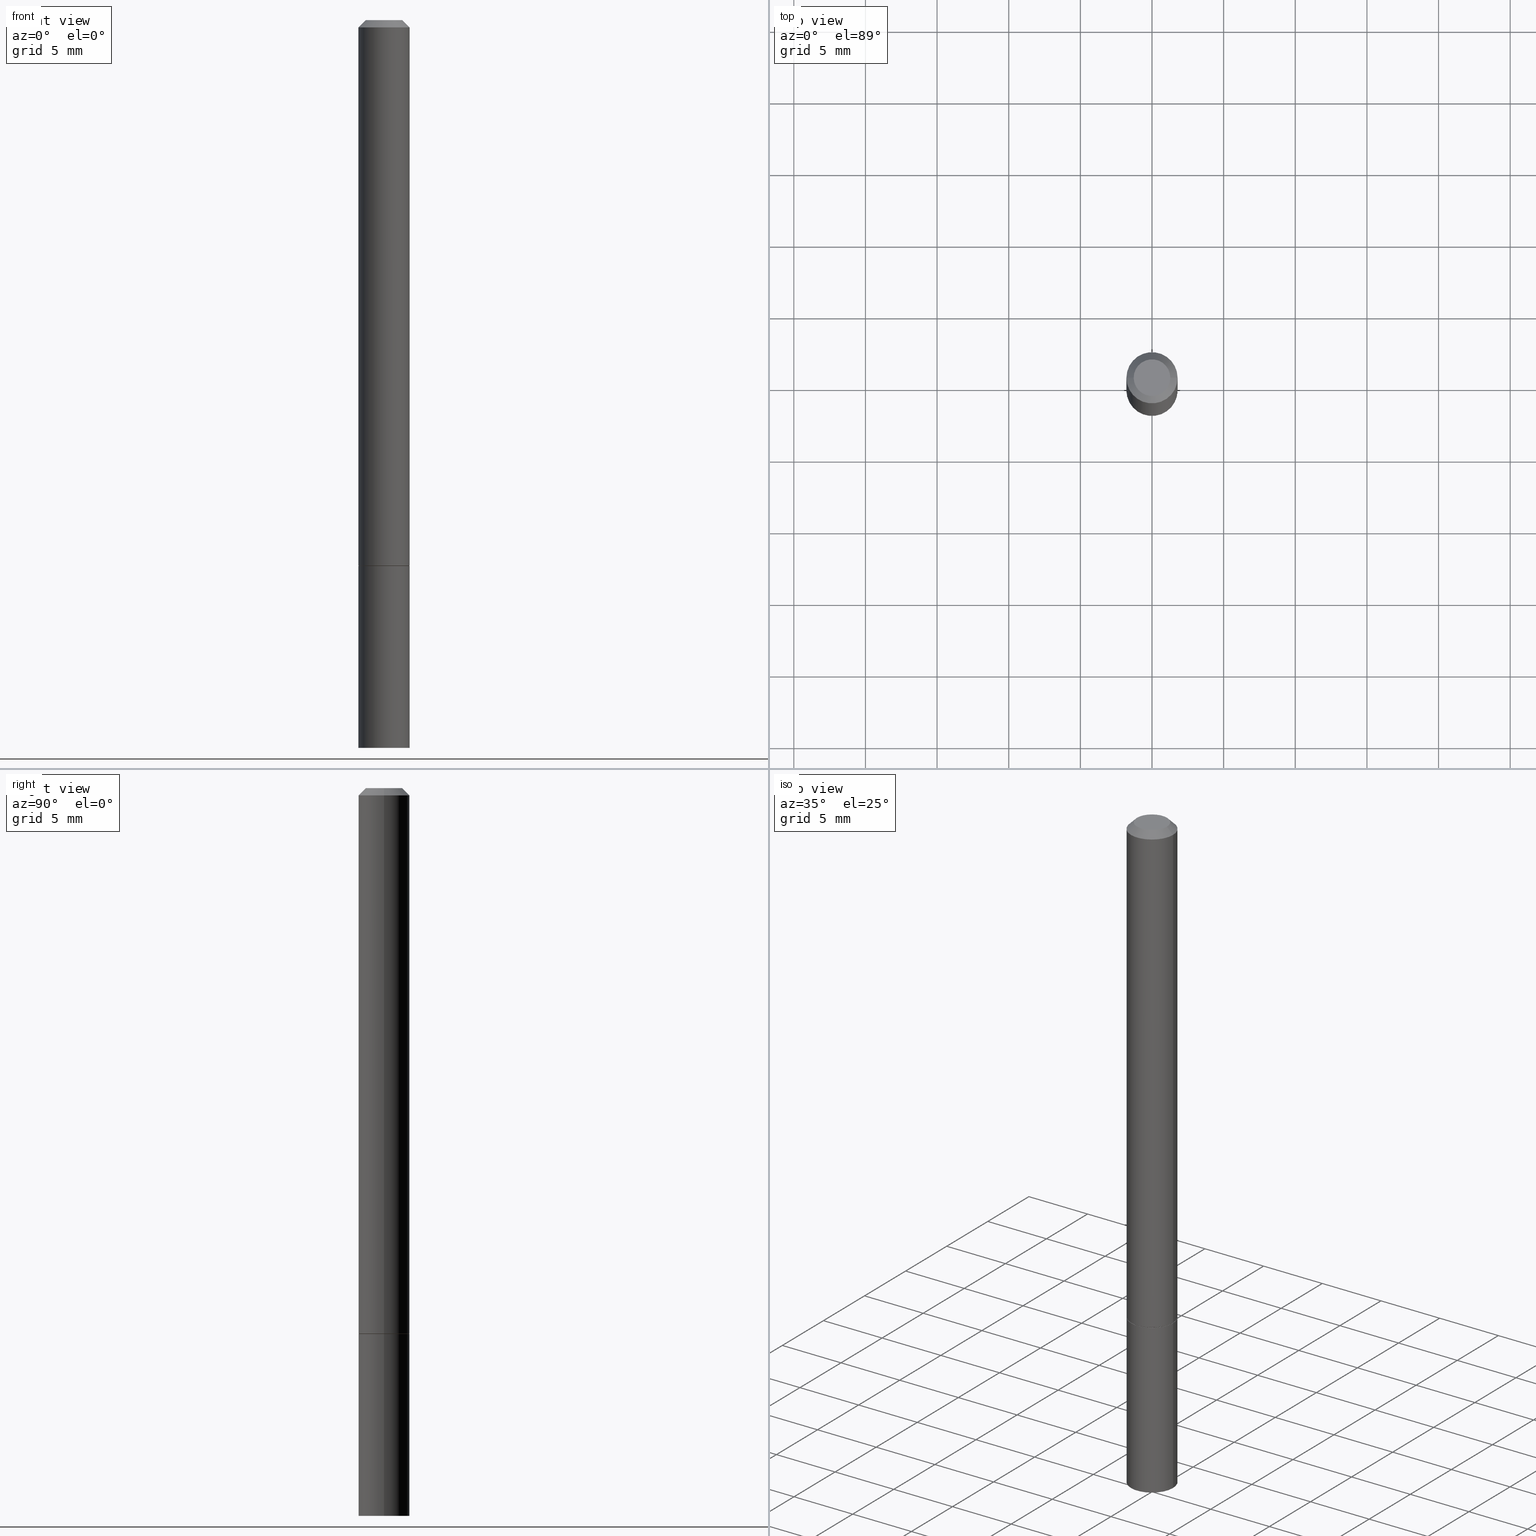
[diagram: canonical four-view strip — front | top / right | iso, engineering-drawing reading convention]
A machine part, canonical four-view strip (front | top / right | iso — engineering-drawing reading convention). The complete STEP part file that produces these views, byte-faithful:
ISO-10303-21;
HEADER;
FILE_DESCRIPTION (( 'STEP AP203' ),
    '1' );
FILE_NAME ('30117.STEP',
    '2023-03-21T20:21:58',
    ( '' ),
    ( '' ),
    'SwSTEP 2.0',
    'SolidWorks 2022',
    '' );
FILE_SCHEMA (( 'CONFIG_CONTROL_DESIGN' ));
ENDSEC;

DATA;
#1 = AXIS2_PLACEMENT_3D ( 'NONE', #193, #353, #11 ) ;
#2 = ORIENTED_EDGE ( 'NONE', *, *, #34, .F. ) ;
#3 = EDGE_CURVE ( 'NONE', #98, #7, #109, .T. ) ;
#4 = VERTEX_POINT ( 'NONE', #78 ) ;
#5 = EDGE_CURVE ( 'NONE', #18, #185, #114, .T. ) ;
#6 = ORIENTED_EDGE ( 'NONE', *, *, #216, .T. ) ;
#7 = VERTEX_POINT ( 'NONE', #132 ) ;
#8 = DIRECTION ( 'NONE',  ( -0.7071067811865466846, 2.468850131082247989E-15, -0.7071067811865483499 ) ) ;
#9 =( LENGTH_UNIT ( ) NAMED_UNIT ( * ) SI_UNIT ( $, .METRE. ) );
#10 = CARTESIAN_POINT ( 'NONE',  ( 4.909022762413812349E-16, 0.07029999999999476945, -1.500000000000000222 ) ) ;
#11 = DIRECTION ( 'NONE',  ( 1.000000000000000000, -6.982962677686265133E-15, 0.000000000000000000 ) ) ;
#12 = DIRECTION ( 'NONE',  ( 1.000000000000000000, -6.982962677686267499E-15, 0.000000000000000000 ) ) ;
#13 = DIRECTION ( 'NONE',  ( -2.445468806185136597E-29, 3.491481338843145583E-15, 1.000000000000000000 ) ) ;
#14 = CONICAL_SURFACE ( 'NONE', #321, 0.06930000000000000049, 0.7853981633972775267 ) ;
#15 = ORIENTED_EDGE ( 'NONE', *, *, #34, .T. ) ;
#16 = DIRECTION ( 'NONE',  ( -2.445468806185136597E-29, 3.491481338843145583E-15, 1.000000000000000000 ) ) ;
#17 = LINE ( 'NONE', #167, #344 ) ;
#18 = VERTEX_POINT ( 'NONE', #278 ) ;
#19 = CARTESIAN_POINT ( 'NONE',  ( -0.07030000000000000138, 4.995115432393504404E-16, -3.458011368449198869E-30 ) ) ;
#20 = FACE_OUTER_BOUND ( 'NONE', #31, .T. ) ;
#21 =( NAMED_UNIT ( * ) SI_UNIT ( $, .STERADIAN. ) SOLID_ANGLE_UNIT ( ) );
#22 = CARTESIAN_POINT ( 'NONE',  ( 0.07029999999999980709, -5.521226360202004844E-16, -0.02000000000000004205 ) ) ;
#23 = VECTOR ( 'NONE', #257, 39.37007874015748854 ) ;
#24 = EDGE_CURVE ( 'NONE', #317, #213, #67, .T. ) ;
#25 = APPROVAL_DATE_TIME ( #170, #246 ) ;
#26 = CIRCLE ( 'NONE', #127, 0.05029999999999981708 ) ;
#27 = ORGANIZATION ( 'UNSPECIFIED', 'UNSPECIFIED', '' ) ;
#28 = PERSON_AND_ORGANIZATION_ROLE ( 'creator' ) ;
#29 = ORIENTED_EDGE ( 'NONE', *, *, #3, .T. ) ;
#30 = PERSON_AND_ORGANIZATION ( #385, #27 ) ;
#31 = EDGE_LOOP ( 'NONE', ( #293, #29, #39 ) ) ;
#32 = AXIS2_PLACEMENT_3D ( 'NONE', #160, #315, #376 ) ;
#33 = CC_DESIGN_APPROVAL ( #246, ( #68 ) ) ;
#34 = EDGE_CURVE ( 'NONE', #125, #230, #196, .T. ) ;
#35 = EDGE_LOOP ( 'NONE', ( #128, #339 ) ) ;
#36 = ORIENTED_EDGE ( 'NONE', *, *, #24, .F. ) ;
#37 = VECTOR ( 'NONE', #8, 39.37007874015748143 ) ;
#38 = LOCAL_TIME ( 16, 21, 58.00000000000000000, #120 ) ;
#39 = ORIENTED_EDGE ( 'NONE', *, *, #305, .F. ) ;
#40 = FACE_OUTER_BOUND ( 'NONE', #303, .T. ) ;
#41 = DIRECTION ( 'NONE',  ( 1.000000000000000000, -6.982962677686265133E-15, 0.000000000000000000 ) ) ;
#42 = DIRECTION ( 'NONE',  ( 1.000000000000000000, -6.982962677686265133E-15, 0.000000000000000000 ) ) ;
#43 = LINE ( 'NONE', #19, #237 ) ;
#44 = DIRECTION ( 'NONE',  ( -2.445468806185136597E-29, 3.491481338843145583E-15, 1.000000000000000000 ) ) ;
#45 = ORIENTED_EDGE ( 'NONE', *, *, #331, .F. ) ;
#46 = EDGE_CURVE ( 'NONE', #4, #220, #171, .T. ) ;
#47 = CYLINDRICAL_SURFACE ( 'NONE', #247, 0.07029999999999990423 ) ;
#48 = CARTESIAN_POINT ( 'NONE',  ( 4.882074157802437776E-29, -6.969889611284763535E-15, -1.996315733116402757 ) ) ;
#49 = ADVANCED_FACE ( 'NONE', ( #226 ), #242, .T. ) ;
#50 = AXIS2_PLACEMENT_3D ( 'NONE', #319, #281, #130 ) ;
#51 = ORIENTED_EDGE ( 'NONE', *, *, #172, .T. ) ;
#52 = DIRECTION ( 'NONE',  ( 1.000000000000000000, -6.982962677686264344E-15, 0.000000000000000000 ) ) ;
#53 = FACE_OUTER_BOUND ( 'NONE', #162, .T. ) ;
#54 = EDGE_CURVE ( 'NONE', #213, #4, #345, .T. ) ;
#55 = FACE_OUTER_BOUND ( 'NONE', #70, .T. ) ;
#56 = CARTESIAN_POINT ( 'NONE',  ( 0.07029999999999980709, -5.521226360202004844E-16, -0.02000000000000004205 ) ) ;
#57 = DIRECTION ( 'NONE',  ( 0.000000000000000000, 0.000000000000000000, 1.000000000000000000 ) ) ;
#58 = VECTOR ( 'NONE', #111, 39.37007874015748143 ) ;
#59 = APPROVAL_STATUS ( 'not_yet_approved' ) ;
#60 = PRODUCT_DEFINITION ( 'UNKNOWN', '', #68, #329 ) ;
#61 = COORDINATED_UNIVERSAL_TIME_OFFSET ( 5, 0, .BEHIND. ) ;
#62 = ORIENTED_EDGE ( 'NONE', *, *, #307, .T. ) ;
#63 = CC_DESIGN_APPROVAL ( #197, ( #187 ) ) ;
#64 = CARTESIAN_POINT ( 'NONE',  ( 0.000000000000000000, 0.000000000000000000, 0.000000000000000000 ) ) ;
#65 = DIMENSIONAL_EXPONENTS ( 1.000000000000000000, 0.000000000000000000, 0.000000000000000000, 0.000000000000000000, 0.000000000000000000, 0.000000000000000000, 0.000000000000000000 ) ;
#66 = ADVANCED_FACE ( 'NONE', ( #112 ), #202, .F. ) ;
#67 = CIRCLE ( 'NONE', #268, 0.06930000000000000049 ) ;
#68 = PRODUCT_DEFINITION_FORMATION_WITH_SPECIFIED_SOURCE ( 'ANY', '', #173, .NOT_KNOWN. ) ;
#69 = ORIENTED_EDGE ( 'NONE', *, *, #105, .F. ) ;
#70 = EDGE_LOOP ( 'NONE', ( #71, #106, #183, #151 ) ) ;
#71 = ORIENTED_EDGE ( 'NONE', *, *, #159, .F. ) ;
#72 = CONICAL_SURFACE ( 'NONE', #225, 751.2258538476867216, 1.518436449235075036 ) ;
#73 = CARTESIAN_POINT ( 'NONE',  ( 0.000000000000000000, 0.000000000000000000, 0.000000000000000000 ) ) ;
#74 = DIRECTION ( 'NONE',  ( 0.7071067811865466846, -7.319954787623252890E-15, -0.7071067811865483499 ) ) ;
#75 = CARTESIAN_POINT ( 'NONE',  ( -0.06930000000000000049, -4.744815892382968547E-15, -1.499999999999999778 ) ) ;
#76 = DIRECTION ( 'NONE',  ( -2.445468806185136597E-29, 3.491481338843145583E-15, 1.000000000000000000 ) ) ;
#77 = CC_DESIGN_DATE_AND_TIME_ASSIGNMENT ( #387, #92, ( #187 ) ) ;
#78 = CARTESIAN_POINT ( 'NONE',  ( -0.07030000000000000138, -2.152268533612014652E-15, -1.498999999999999444 ) ) ;
#79 = EDGE_CURVE ( 'NONE', #314, #18, #87, .T. ) ;
#80 = DIRECTION ( 'NONE',  ( -2.438088387897960049E-29, 3.491481338843145188E-15, 1.000000000000000000 ) ) ;
#81 = CARTESIAN_POINT ( 'NONE',  ( 4.890937612370283668E-31, -6.982962677686305168E-17, -0.02000000000000004205 ) ) ;
#82 = CARTESIAN_POINT ( 'NONE',  ( 3.668203209277704335E-29, -5.237222008264717388E-15, -1.499999999999999778 ) ) ;
#83 = ADVANCED_FACE ( 'NONE', ( #312 ), #108, .F. ) ;
#84 = CARTESIAN_POINT ( 'NONE',  ( 0.000000000000000000, 0.000000000000000000, 0.000000000000000000 ) ) ;
#85 = DIRECTION ( 'NONE',  ( 1.000000000000000000, -6.982962677686267499E-15, 0.000000000000000000 ) ) ;
#86 = AXIS2_PLACEMENT_3D ( 'NONE', #224, #44, #41 ) ;
#87 = LINE ( 'NONE', #253, #58 ) ;
#88 = DIRECTION ( 'NONE',  ( -1.000000000000000000, 6.982962677686265133E-15, 0.000000000000000000 ) ) ;
#89 = CALENDAR_DATE ( 2023, 21, 3 ) ;
#90 = CIRCLE ( 'NONE', #337, 0.07029999999999980709 ) ;
#91 = DATE_TIME_ROLE ( 'creation_date' ) ;
#92 = DATE_TIME_ROLE ( 'classification_date' ) ;
#93 = CALENDAR_DATE ( 2023, 21, 3 ) ;
#94 = AXIS2_PLACEMENT_3D ( 'NONE', #221, #129, #283 ) ;
#95 = ORIENTED_EDGE ( 'NONE', *, *, #331, .T. ) ;
#96 = CIRCLE ( 'NONE', #122, 0.07030000000000000138 ) ;
#97 = LOCAL_TIME ( 16, 21, 58.00000000000000000, #61 ) ;
#98 = VERTEX_POINT ( 'NONE', #48 ) ;
#99 = CARTESIAN_POINT ( 'NONE',  ( 0.07030000000000004301, -7.465255686929629633E-15, -2.000000000000000000 ) ) ;
#100 = FACE_OUTER_BOUND ( 'NONE', #245, .T. ) ;
#101 = ORIENTED_EDGE ( 'NONE', *, *, #54, .T. ) ;
#102 = AXIS2_PLACEMENT_3D ( 'NONE', #81, #13, #85 ) ;
#103 =( CONVERSION_BASED_UNIT ( 'INCH', #110 ) LENGTH_UNIT ( ) NAMED_UNIT ( #65 ) );
#104 = DIRECTION ( 'NONE',  ( 1.000000000000000000, -6.982962677686266711E-15, 4.876176775795936353E-29 ) ) ;
#105 = EDGE_CURVE ( 'NONE', #185, #18, #371, .T. ) ;
#106 = ORIENTED_EDGE ( 'NONE', *, *, #46, .T. ) ;
#107 = CARTESIAN_POINT ( 'NONE',  ( 4.890937612370283668E-31, -6.982962677686305168E-17, -0.02000000000000004205 ) ) ;
#108 = PLANE ( 'NONE',  #386 ) ;
#109 = LINE ( 'NONE', #368, #163 ) ;
#110 = LENGTH_MEASURE_WITH_UNIT ( LENGTH_MEASURE( 0.02539999999999999897 ), #9 );
#111 = DIRECTION ( 'NONE',  ( -2.445468806185136877E-29, 3.491481338843145188E-15, 1.000000000000000000 ) ) ;
#112 = FACE_OUTER_BOUND ( 'NONE', #179, .T. ) ;
#113 = CARTESIAN_POINT ( 'NONE',  ( 1.011602273087405212E-27, -1.444299943586600005E-13, -41.36639447327388552 ) ) ;
#114 = CIRCLE ( 'NONE', #1, 0.07030000000000000138 ) ;
#115 = APPROVAL_STATUS ( 'not_yet_approved' ) ;
#116 = DATE_AND_TIME ( #209, #38 ) ;
#117 = AXIS2_PLACEMENT_3D ( 'NONE', #354, #325, #104 ) ;
#118 = CC_DESIGN_SECURITY_CLASSIFICATION ( #187, ( #68 ) ) ;
#119 = PERSON_AND_ORGANIZATION ( #385, #27 ) ;
#120 = COORDINATED_UNIVERSAL_TIME_OFFSET ( 5, 0, .BEHIND. ) ;
#121 = ADVANCED_FACE ( 'NONE', ( #201 ), #161, .T. ) ;
#122 = AXIS2_PLACEMENT_3D ( 'NONE', #231, #285, #351 ) ;
#123 = ORIENTED_EDGE ( 'NONE', *, *, #182, .T. ) ;
#124 = CC_DESIGN_PERSON_AND_ORGANIZATION_ASSIGNMENT ( #119, #28, ( #68 ) ) ;
#125 = VERTEX_POINT ( 'NONE', #287 ) ;
#126 = CIRCLE ( 'NONE', #152, 0.07030000000000000138 ) ;
#127 = AXIS2_PLACEMENT_3D ( 'NONE', #73, #16, #188 ) ;
#128 = ORIENTED_EDGE ( 'NONE', *, *, #5, .T. ) ;
#129 = DIRECTION ( 'NONE',  ( -2.445468806185136597E-29, 3.491481338843145583E-15, 1.000000000000000000 ) ) ;
#130 = DIRECTION ( 'NONE',  ( 1.000000000000000000, -6.982962677686266711E-15, 4.876176775795935793E-29 ) ) ;
#131 = CARTESIAN_POINT ( 'NONE',  ( -0.07030000000000000138, -5.610580799736154033E-15, -1.499999999999999778 ) ) ;
#132 = CARTESIAN_POINT ( 'NONE',  ( -0.07030000000000004301, -6.492060401444947007E-15, -2.000000000000000000 ) ) ;
#133 = CIRCLE ( 'NONE', #102, 0.07029999999999980709 ) ;
#134 = FACE_OUTER_BOUND ( 'NONE', #306, .T. ) ;
#135 = DIRECTION ( 'NONE',  ( 2.438088387897960049E-29, -3.491481338843145188E-15, -1.000000000000000000 ) ) ;
#136 = ORIENTED_EDGE ( 'NONE', *, *, #149, .T. ) ;
#137 = DIRECTION ( 'NONE',  ( -2.445468806185136597E-29, 3.491481338843145583E-15, 1.000000000000000000 ) ) ;
#138 = ORIENTED_EDGE ( 'NONE', *, *, #5, .F. ) ;
#139 = CARTESIAN_POINT ( 'NONE',  ( 2.095173301790458016E-19, -6.970099128614893921E-15, -1.996315733116402757 ) ) ;
#140 = PLANE ( 'NONE',  #272 ) ;
#141 = LINE ( 'NONE', #370, #310 ) ;
#142 = CC_DESIGN_PERSON_AND_ORGANIZATION_ASSIGNMENT ( #241, #358, ( #60 ) ) ;
#143 = PRODUCT_DEFINITION_SHAPE ( 'NONE', 'NONE',  #60 ) ;
#144 = APPROVAL_ROLE ( '' ) ;
#145 = EDGE_CURVE ( 'NONE', #7, #314, #126, .T. ) ;
#146 = ORIENTED_EDGE ( 'NONE', *, *, #145, .F. ) ;
#147 = CONICAL_SURFACE ( 'NONE', #254, 0.07029999999999980709, 0.7853981633974471688 ) ;
#148 = ADVANCED_BREP_SHAPE_REPRESENTATION ( '30117', ( #180, #309, #200 ), #153 ) ;
#149 = EDGE_CURVE ( 'NONE', #258, #233, #352, .T. ) ;
#150 = ORIENTED_EDGE ( 'NONE', *, *, #307, .F. ) ;
#151 = ORIENTED_EDGE ( 'NONE', *, *, #341, .F. ) ;
#152 = AXIS2_PLACEMENT_3D ( 'NONE', #235, #232, #343 ) ;
#153 =( GEOMETRIC_REPRESENTATION_CONTEXT ( 3 ) GLOBAL_UNCERTAINTY_ASSIGNED_CONTEXT ( ( #318 ) ) GLOBAL_UNIT_ASSIGNED_CONTEXT ( ( #103, #228, #21 ) ) REPRESENTATION_CONTEXT ( 'NONE', 'WORKASPACE' ) );
#154 = SHAPE_DEFINITION_REPRESENTATION ( #143, #148 ) ;
#155 = DIRECTION ( 'NONE',  ( -0.9986295347545742773, 6.790662755453672411E-15, -0.05233595624293554960 ) ) ;
#156 = FACE_OUTER_BOUND ( 'NONE', #364, .T. ) ;
#157 = DIRECTION ( 'NONE',  ( -2.445468806185136597E-29, 3.491481338843145583E-15, 1.000000000000000000 ) ) ;
#158 = DIRECTION ( 'NONE',  ( -2.445468806185136597E-29, 3.491481338843145583E-15, 1.000000000000000000 ) ) ;
#159 = EDGE_CURVE ( 'NONE', #4, #230, #141, .T. ) ;
#160 = CARTESIAN_POINT ( 'NONE',  ( 4.890937612370273194E-29, -6.982962677686291165E-15, -2.000000000000000000 ) ) ;
#161 = CYLINDRICAL_SURFACE ( 'NONE', #198, 0.07030000000000000138 ) ;
#162 = EDGE_LOOP ( 'NONE', ( #375, #123, #146 ) ) ;
#163 = VECTOR ( 'NONE', #155, 39.37007874015748854 ) ;
#164 = CARTESIAN_POINT ( 'NONE',  ( 0.06930000000000000049, -5.721141321828375532E-15, -1.499999999999999778 ) ) ;
#165 = DIRECTION ( 'NONE',  ( -1.000000000000000000, 6.982962677686265133E-15, 0.000000000000000000 ) ) ;
#166 = DIRECTION ( 'NONE',  ( -2.445468806185136597E-29, 3.491481338843145583E-15, 1.000000000000000000 ) ) ;
#167 = CARTESIAN_POINT ( 'NONE',  ( 0.06930000000000000049, -5.721141321828375532E-15, -1.499999999999999778 ) ) ;
#168 = DIRECTION ( 'NONE',  ( -2.445468806185136877E-29, 3.491481338843145188E-15, 1.000000000000000000 ) ) ;
#169 = CARTESIAN_POINT ( 'NONE',  ( 0.000000000000000000, 0.000000000000000000, 0.000000000000000000 ) ) ;
#170 = DATE_AND_TIME ( #93, #218 ) ;
#171 = CIRCLE ( 'NONE', #176, 0.07030000000000000138 ) ;
#172 = EDGE_CURVE ( 'NONE', #258, #125, #212, .T. ) ;
#173 = PRODUCT ( '30117', '30117', '', ( #178 ) ) ;
#174 = EDGE_CURVE ( 'NONE', #233, #230, #133, .T. ) ;
#175 = DATE_AND_TIME ( #89, #97 ) ;
#176 = AXIS2_PLACEMENT_3D ( 'NONE', #322, #166, #42 ) ;
#177 = ORIENTED_EDGE ( 'NONE', *, *, #341, .T. ) ;
#178 = MECHANICAL_CONTEXT ( 'NONE', #384, 'mechanical' ) ;
#179 = EDGE_LOOP ( 'NONE', ( #333, #51 ) ) ;
#180 = MANIFOLD_SOLID_BREP ( 'Body-Move/Copy2[1]', #297 ) ;
#181 = AXIS2_PLACEMENT_3D ( 'NONE', #107, #342, #199 ) ;
#182 = EDGE_CURVE ( 'NONE', #98, #314, #282, .T. ) ;
#183 = ORIENTED_EDGE ( 'NONE', *, *, #215, .T. ) ;
#184 = ORIENTED_EDGE ( 'NONE', *, *, #145, .T. ) ;
#185 = VERTEX_POINT ( 'NONE', #131 ) ;
#186 = CLOSED_SHELL ( 'NONE', ( #349, #346, #276, #270, #362, #49, #286, #66 ) ) ;
#187 = SECURITY_CLASSIFICATION ( '', '', #267 ) ;
#188 = DIRECTION ( 'NONE',  ( 1.000000000000000000, -6.982962677686266711E-15, 4.876176775795936353E-29 ) ) ;
#189 = DIRECTION ( 'NONE',  ( -1.000000000000000000, 6.982962677686265922E-15, -4.876176775795935793E-29 ) ) ;
#190 = ADVANCED_FACE ( 'NONE', ( #53 ), #335, .F. ) ;
#191 = DIRECTION ( 'NONE',  ( -0.7071067811864267805, 7.493145998869918709E-15, 0.7071067811866682540 ) ) ;
#192 = CARTESIAN_POINT ( 'NONE',  ( 0.07029999999999990423, -4.909022762413438627E-16, 3.427952273384538232E-30 ) ) ;
#193 = CARTESIAN_POINT ( 'NONE',  ( 3.668203209277704335E-29, -5.237222008264717388E-15, -1.499999999999999778 ) ) ;
#194 = FACE_OUTER_BOUND ( 'NONE', #338, .T. ) ;
#195 = LINE ( 'NONE', #192, #355 ) ;
#196 = LINE ( 'NONE', #261, #37 ) ;
#197 = APPROVAL ( #115, 'UNSPECIFIED' ) ;
#198 = AXIS2_PLACEMENT_3D ( 'NONE', #296, #157, #316 ) ;
#199 = DIRECTION ( 'NONE',  ( -1.000000000000000000, 6.982962677686267499E-15, 0.000000000000000000 ) ) ;
#200 = AXIS2_PLACEMENT_3D ( 'NONE', #64, #57, #205 ) ;
#201 = FACE_OUTER_BOUND ( 'NONE', #250, .T. ) ;
#202 = PLANE ( 'NONE',  #302 ) ;
#203 = CARTESIAN_POINT ( 'NONE',  ( 0.07030000000000000138, -5.724632803167218539E-15, -1.498999999999999444 ) ) ;
#204 = APPROVAL_DATE_TIME ( #175, #197 ) ;
#205 = DIRECTION ( 'NONE',  ( 1.000000000000000000, 0.000000000000000000, 0.000000000000000000 ) ) ;
#206 = CIRCLE ( 'NONE', #32, 0.07030000000000000138 ) ;
#207 = LOCAL_TIME ( 16, 21, 58.00000000000000000, #361 ) ;
#208 = EDGE_CURVE ( 'NONE', #213, #317, #244, .T. ) ;
#209 = CALENDAR_DATE ( 2023, 21, 3 ) ;
#210 = APPROVAL_STATUS ( 'not_yet_approved' ) ;
#211 = PERSON_AND_ORGANIZATION_ROLE ( 'design_supplier' ) ;
#212 = CIRCLE ( 'NONE', #117, 0.05029999999999981708 ) ;
#213 = VERTEX_POINT ( 'NONE', #320 ) ;
#214 = ADVANCED_FACE ( 'NONE', ( #381 ), #348, .T. ) ;
#215 = EDGE_CURVE ( 'NONE', #220, #233, #195, .T. ) ;
#216 = EDGE_CURVE ( 'NONE', #317, #220, #17, .T. ) ;
#217 = AXIS2_PLACEMENT_3D ( 'NONE', #169, #76, #377 ) ;
#218 = LOCAL_TIME ( 16, 21, 58.00000000000000000, #301 ) ;
#219 = ADVANCED_FACE ( 'NONE', ( #20 ), #72, .F. ) ;
#220 = VERTEX_POINT ( 'NONE', #203 ) ;
#221 = CARTESIAN_POINT ( 'NONE',  ( 3.668203209277704335E-29, -5.237222008264717388E-15, -1.499999999999999778 ) ) ;
#222 = ORIENTED_EDGE ( 'NONE', *, *, #208, .T. ) ;
#223 = DIRECTION ( 'NONE',  ( -2.445468806185136597E-29, 3.491481338843145583E-15, 1.000000000000000000 ) ) ;
#224 = CARTESIAN_POINT ( 'NONE',  ( 3.668203209277704335E-29, -5.237222008264717388E-15, -1.499999999999999778 ) ) ;
#225 = AXIS2_PLACEMENT_3D ( 'NONE', #113, #357, #88 ) ;
#226 = FACE_OUTER_BOUND ( 'NONE', #255, .T. ) ;
#227 = APPROVAL_PERSON_ORGANIZATION ( #332, #197, #334 ) ;
#228 =( NAMED_UNIT ( * ) PLANE_ANGLE_UNIT ( ) SI_UNIT ( $, .RADIAN. ) );
#229 = CARTESIAN_POINT ( 'NONE',  ( 3.668203209277704335E-29, -5.237222008264717388E-15, -1.499999999999999778 ) ) ;
#230 = VERTEX_POINT ( 'NONE', #327 ) ;
#231 = CARTESIAN_POINT ( 'NONE',  ( 3.665757740471518171E-29, -5.233730526925873592E-15, -1.498999999999999444 ) ) ;
#232 = DIRECTION ( 'NONE',  ( -2.445468806185136597E-29, 3.491481338843145583E-15, 1.000000000000000000 ) ) ;
#233 = VERTEX_POINT ( 'NONE', #56 ) ;
#234 = DIRECTION ( 'NONE',  ( -2.445468806185136597E-29, 3.491481338843145583E-15, 1.000000000000000000 ) ) ;
#235 = CARTESIAN_POINT ( 'NONE',  ( 4.890937612370273194E-29, -6.982962677686291165E-15, -2.000000000000000000 ) ) ;
#236 = DIRECTION ( 'NONE',  ( -1.000000000000000000, 6.982962677686265922E-15, -4.876176775795935793E-29 ) ) ;
#237 = VECTOR ( 'NONE', #168, 39.37007874015748143 ) ;
#238 = DIRECTION ( 'NONE',  ( 1.000000000000000000, -6.982962677686264344E-15, 0.000000000000000000 ) ) ;
#239 = DATE_AND_TIME ( #359, #207 ) ;
#240 = APPROVAL_DATE_TIME ( #116, #313 ) ;
#241 = PERSON_AND_ORGANIZATION ( #385, #27 ) ;
#242 = CONICAL_SURFACE ( 'NONE', #94, 0.06930000000000000049, 0.7853981633972775267 ) ;
#243 = PERSON_AND_ORGANIZATION ( #385, #27 ) ;
#244 = CIRCLE ( 'NONE', #263, 0.06930000000000000049 ) ;
#245 = EDGE_LOOP ( 'NONE', ( #367, #350, #15, #177 ) ) ;
#246 = APPROVAL ( #59, 'UNSPECIFIED' ) ;
#247 = AXIS2_PLACEMENT_3D ( 'NONE', #84, #373, #291 ) ;
#248 = LOCAL_TIME ( 16, 21, 58.00000000000000000, #388 ) ;
#249 = ORIENTED_EDGE ( 'NONE', *, *, #305, .T. ) ;
#250 = EDGE_LOOP ( 'NONE', ( #249, #95, #138, #379 ) ) ;
#251 = ORIENTED_EDGE ( 'NONE', *, *, #174, .F. ) ;
#252 = DIRECTION ( 'NONE',  ( -1.000000000000000000, 6.982962677686267499E-15, 0.000000000000000000 ) ) ;
#253 = CARTESIAN_POINT ( 'NONE',  ( 0.07030000000000000138, -4.909022762413445529E-16, 3.427952273384543137E-30 ) ) ;
#254 = AXIS2_PLACEMENT_3D ( 'NONE', #290, #294, #252 ) ;
#255 = EDGE_LOOP ( 'NONE', ( #289, #222, #6, #269 ) ) ;
#256 = CARTESIAN_POINT ( 'NONE',  ( 3.668203209277704335E-29, -5.237222008264717388E-15, -1.499999999999999778 ) ) ;
#257 = DIRECTION ( 'NONE',  ( 0.9986295347545742773, -7.033825938271993967E-15, -0.05233595624293554960 ) ) ;
#258 = VERTEX_POINT ( 'NONE', #265 ) ;
#259 = DIRECTION ( 'NONE',  ( 1.000000000000000000, -6.982962677686265922E-15, 4.876176775795935793E-29 ) ) ;
#260 = DIRECTION ( 'NONE',  ( 2.445468806185136597E-29, -3.491481338843145583E-15, -1.000000000000000000 ) ) ;
#261 = CARTESIAN_POINT ( 'NONE',  ( -0.07029999999999980709, 4.210726494644801207E-16, -0.02000000000000004205 ) ) ;
#262 = DIRECTION ( 'NONE',  ( -2.445468806185136877E-29, 3.491481338843145188E-15, 1.000000000000000000 ) ) ;
#263 = AXIS2_PLACEMENT_3D ( 'NONE', #229, #137, #238 ) ;
#264 = CALENDAR_DATE ( 2023, 21, 3 ) ;
#265 = CARTESIAN_POINT ( 'NONE',  ( 0.05029999999999981708, -4.486028426540536026E-16, 2.796359263189735848E-30 ) ) ;
#266 = APPLICATION_PROTOCOL_DEFINITION ( 'international standard', 'config_control_design', 1994, #279 ) ;
#267 = SECURITY_CLASSIFICATION_LEVEL ( 'unclassified' ) ;
#268 = AXIS2_PLACEMENT_3D ( 'NONE', #82, #158, #280 ) ;
#269 = ORIENTED_EDGE ( 'NONE', *, *, #46, .F. ) ;
#270 = ADVANCED_FACE ( 'NONE', ( #100 ), #147, .T. ) ;
#271 = ORIENTED_EDGE ( 'NONE', *, *, #208, .F. ) ;
#272 = AXIS2_PLACEMENT_3D ( 'NONE', #256, #80, #259 ) ;
#273 = ORIENTED_EDGE ( 'NONE', *, *, #24, .T. ) ;
#274 = ORIENTED_EDGE ( 'NONE', *, *, #172, .F. ) ;
#275 = CC_DESIGN_PERSON_AND_ORGANIZATION_ASSIGNMENT ( #243, #363, ( #173 ) ) ;
#276 = ADVANCED_FACE ( 'NONE', ( #40 ), #328, .T. ) ;
#277 = APPROVAL_PERSON_ORGANIZATION ( #330, #246, #144 ) ;
#278 = CARTESIAN_POINT ( 'NONE',  ( 0.07030000000000000138, -5.728124284506062335E-15, -1.499999999999999778 ) ) ;
#279 = APPLICATION_CONTEXT ( 'configuration controlled 3d designs of mechanical parts and assemblies' ) ;
#280 = DIRECTION ( 'NONE',  ( 1.000000000000000000, -6.982962677686264344E-15, 0.000000000000000000 ) ) ;
#281 = DIRECTION ( 'NONE',  ( -2.445468806185136597E-29, 3.491481338843145583E-15, 1.000000000000000000 ) ) ;
#282 = LINE ( 'NONE', #139, #23 ) ;
#283 = DIRECTION ( 'NONE',  ( 1.000000000000000000, -6.982962677686264344E-15, 0.000000000000000000 ) ) ;
#284 = CC_DESIGN_PERSON_AND_ORGANIZATION_ASSIGNMENT ( #383, #211, ( #68 ) ) ;
#285 = DIRECTION ( 'NONE',  ( -2.445468806185136597E-29, 3.491481338843145583E-15, 1.000000000000000000 ) ) ;
#286 = ADVANCED_FACE ( 'NONE', ( #156 ), #140, .F. ) ;
#287 = CARTESIAN_POINT ( 'NONE',  ( -0.05029999999999981708, 3.861578360760490633E-16, -2.578333688018695256E-30 ) ) ;
#288 = AXIS2_PLACEMENT_3D ( 'NONE', #374, #260, #165 ) ;
#289 = ORIENTED_EDGE ( 'NONE', *, *, #54, .F. ) ;
#290 = CARTESIAN_POINT ( 'NONE',  ( 4.890937612370283668E-31, -6.982962677686305168E-17, -0.02000000000000004205 ) ) ;
#291 = DIRECTION ( 'NONE',  ( 1.000000000000000000, -6.982962677686266711E-15, 4.876176775795935793E-29 ) ) ;
#292 = DIRECTION ( 'NONE',  ( -2.445468806185136877E-29, 3.491481338843145188E-15, 1.000000000000000000 ) ) ;
#293 = ORIENTED_EDGE ( 'NONE', *, *, #182, .F. ) ;
#294 = DIRECTION ( 'NONE',  ( 2.445468806185136597E-29, -3.491481338843145583E-15, -1.000000000000000000 ) ) ;
#295 = DIRECTION ( 'NONE',  ( 0.7071067811864267805, -2.468850131080992517E-15, 0.7071067811866682540 ) ) ;
#296 = CARTESIAN_POINT ( 'NONE',  ( 0.000000000000000000, 0.000000000000000000, 0.000000000000000000 ) ) ;
#297 = CLOSED_SHELL ( 'NONE', ( #121, #190, #219, #214, #83 ) ) ;
#298 = PERSON_AND_ORGANIZATION_ROLE ( 'classification_officer' ) ;
#299 = APPROVAL_ROLE ( '' ) ;
#300 = CC_DESIGN_PERSON_AND_ORGANIZATION_ASSIGNMENT ( #30, #298, ( #187 ) ) ;
#301 = COORDINATED_UNIVERSAL_TIME_OFFSET ( 5, 0, .BEHIND. ) ;
#302 = AXIS2_PLACEMENT_3D ( 'NONE', #356, #326, #236 ) ;
#303 = EDGE_LOOP ( 'NONE', ( #274, #136, #336, #2 ) ) ;
#304 = PERSON_AND_ORGANIZATION ( #385, #27 ) ;
#305 = EDGE_CURVE ( 'NONE', #314, #7, #206, .T. ) ;
#306 = EDGE_LOOP ( 'NONE', ( #273, #101, #150, #340 ) ) ;
#307 = EDGE_CURVE ( 'NONE', #220, #4, #96, .T. ) ;
#308 = ORIENTED_EDGE ( 'NONE', *, *, #215, .F. ) ;
#309 = MANIFOLD_SOLID_BREP ( 'Body-Move/Copy2[2]', #186 ) ;
#310 = VECTOR ( 'NONE', #262, 39.37007874015748143 ) ;
#311 = ORIENTED_EDGE ( 'NONE', *, *, #159, .T. ) ;
#312 = FACE_OUTER_BOUND ( 'NONE', #35, .T. ) ;
#313 = APPROVAL ( #210, 'UNSPECIFIED' ) ;
#314 = VERTEX_POINT ( 'NONE', #99 ) ;
#315 = DIRECTION ( 'NONE',  ( -2.445468806185136597E-29, 3.491481338843145583E-15, 1.000000000000000000 ) ) ;
#316 = DIRECTION ( 'NONE',  ( 1.000000000000000000, -6.982962677686266711E-15, 4.876176775795936353E-29 ) ) ;
#317 = VERTEX_POINT ( 'NONE', #164 ) ;
#318 = UNCERTAINTY_MEASURE_WITH_UNIT (LENGTH_MEASURE( 1.000000000000000082E-05 ), #103, 'distance_accuracy_value', 'NONE');
#319 = CARTESIAN_POINT ( 'NONE',  ( 0.000000000000000000, 0.000000000000000000, 0.000000000000000000 ) ) ;
#320 = CARTESIAN_POINT ( 'NONE',  ( -0.06930000000000000049, -4.739517438034745356E-15, -1.499999999999999778 ) ) ;
#321 = AXIS2_PLACEMENT_3D ( 'NONE', #380, #234, #52 ) ;
#322 = CARTESIAN_POINT ( 'NONE',  ( 3.665757740471518171E-29, -5.233730526925873592E-15, -1.498999999999999444 ) ) ;
#323 = APPROVAL_PERSON_ORGANIZATION ( #304, #313, #299 ) ;
#324 = CYLINDRICAL_SURFACE ( 'NONE', #50, 0.07029999999999990423 ) ;
#325 = DIRECTION ( 'NONE',  ( -2.445468806185136597E-29, 3.491481338843145583E-15, 1.000000000000000000 ) ) ;
#326 = DIRECTION ( 'NONE',  ( 2.438088387897960049E-29, -3.491481338843145188E-15, -1.000000000000000000 ) ) ;
#327 = CARTESIAN_POINT ( 'NONE',  ( -0.07029999999999980709, 4.210726494644801207E-16, -0.02000000000000004205 ) ) ;
#328 = CONICAL_SURFACE ( 'NONE', #181, 0.07029999999999980709, 0.7853981633974471688 ) ;
#329 = DESIGN_CONTEXT ( 'detailed design', #279, 'design' ) ;
#330 = PERSON_AND_ORGANIZATION ( #385, #27 ) ;
#331 = EDGE_CURVE ( 'NONE', #7, #185, #43, .T. ) ;
#332 = PERSON_AND_ORGANIZATION ( #385, #27 ) ;
#333 = ORIENTED_EDGE ( 'NONE', *, *, #389, .T. ) ;
#334 = APPROVAL_ROLE ( '' ) ;
#335 = CONICAL_SURFACE ( 'NONE', #288, 751.2258538476867216, 1.518436449235075036 ) ;
#336 = ORIENTED_EDGE ( 'NONE', *, *, #174, .T. ) ;
#337 = AXIS2_PLACEMENT_3D ( 'NONE', #369, #223, #12 ) ;
#338 = EDGE_LOOP ( 'NONE', ( #62, #311, #251, #308 ) ) ;
#339 = ORIENTED_EDGE ( 'NONE', *, *, #105, .T. ) ;
#340 = ORIENTED_EDGE ( 'NONE', *, *, #216, .F. ) ;
#341 = EDGE_CURVE ( 'NONE', #230, #233, #90, .T. ) ;
#342 = DIRECTION ( 'NONE',  ( 2.445468806185136597E-29, -3.491481338843145583E-15, -1.000000000000000000 ) ) ;
#343 = DIRECTION ( 'NONE',  ( 1.000000000000000000, -6.982962677686265133E-15, 0.000000000000000000 ) ) ;
#344 = VECTOR ( 'NONE', #295, 39.37007874015748143 ) ;
#345 = LINE ( 'NONE', #75, #366 ) ;
#346 = ADVANCED_FACE ( 'NONE', ( #194 ), #324, .T. ) ;
#347 = APPLICATION_PROTOCOL_DEFINITION ( 'international standard', 'config_control_design', 1994, #384 ) ;
#348 = CYLINDRICAL_SURFACE ( 'NONE', #217, 0.07030000000000000138 ) ;
#349 = ADVANCED_FACE ( 'NONE', ( #134 ), #14, .T. ) ;
#350 = ORIENTED_EDGE ( 'NONE', *, *, #389, .F. ) ;
#351 = DIRECTION ( 'NONE',  ( 1.000000000000000000, -6.982962677686265133E-15, 0.000000000000000000 ) ) ;
#352 = LINE ( 'NONE', #22, #382 ) ;
#353 = DIRECTION ( 'NONE',  ( -2.445468806185136597E-29, 3.491481338843145583E-15, 1.000000000000000000 ) ) ;
#354 = CARTESIAN_POINT ( 'NONE',  ( 0.000000000000000000, 0.000000000000000000, 0.000000000000000000 ) ) ;
#355 = VECTOR ( 'NONE', #292, 39.37007874015748143 ) ;
#356 = CARTESIAN_POINT ( 'NONE',  ( 3.512430226876179072E-16, 0.05029999999999981708, -1.756215113438095946E-16 ) ) ;
#357 = DIRECTION ( 'NONE',  ( 2.445468806185136597E-29, -3.491481338843145583E-15, -1.000000000000000000 ) ) ;
#358 = PERSON_AND_ORGANIZATION_ROLE ( 'creator' ) ;
#359 = CALENDAR_DATE ( 2023, 21, 3 ) ;
#360 = CC_DESIGN_APPROVAL ( #313, ( #60 ) ) ;
#361 = COORDINATED_UNIVERSAL_TIME_OFFSET ( 5, 0, .BEHIND. ) ;
#362 = ADVANCED_FACE ( 'NONE', ( #55 ), #47, .T. ) ;
#363 = PERSON_AND_ORGANIZATION_ROLE ( 'design_owner' ) ;
#364 = EDGE_LOOP ( 'NONE', ( #36, #271 ) ) ;
#365 = CC_DESIGN_DATE_AND_TIME_ASSIGNMENT ( #239, #91, ( #60 ) ) ;
#366 = VECTOR ( 'NONE', #191, 39.37007874015748143 ) ;
#367 = ORIENTED_EDGE ( 'NONE', *, *, #149, .F. ) ;
#368 = CARTESIAN_POINT ( 'NONE',  ( -2.095173300814072201E-19, -6.970099128614893921E-15, -1.996315733116402757 ) ) ;
#369 = CARTESIAN_POINT ( 'NONE',  ( 4.890937612370283668E-31, -6.982962677686305168E-17, -0.02000000000000004205 ) ) ;
#370 = CARTESIAN_POINT ( 'NONE',  ( -0.07029999999999990423, 4.995115432393497502E-16, -3.458011368449193965E-30 ) ) ;
#371 = CIRCLE ( 'NONE', #86, 0.07030000000000000138 ) ;
#372 = EDGE_LOOP ( 'NONE', ( #45, #184, #390, #69 ) ) ;
#373 = DIRECTION ( 'NONE',  ( -2.445468806185136597E-29, 3.491481338843145583E-15, 1.000000000000000000 ) ) ;
#374 = CARTESIAN_POINT ( 'NONE',  ( 1.011602273087405212E-27, -1.444299943586600005E-13, -41.36639447327388552 ) ) ;
#375 = ORIENTED_EDGE ( 'NONE', *, *, #3, .F. ) ;
#376 = DIRECTION ( 'NONE',  ( 1.000000000000000000, -6.982962677686265133E-15, 0.000000000000000000 ) ) ;
#377 = DIRECTION ( 'NONE',  ( 1.000000000000000000, -6.982962677686266711E-15, 4.876176775795936353E-29 ) ) ;
#378 = PRODUCT_RELATED_PRODUCT_CATEGORY ( 'detail', '', ( #173 ) ) ;
#379 = ORIENTED_EDGE ( 'NONE', *, *, #79, .F. ) ;
#380 = CARTESIAN_POINT ( 'NONE',  ( 3.668203209277704335E-29, -5.237222008264717388E-15, -1.499999999999999778 ) ) ;
#381 = FACE_OUTER_BOUND ( 'NONE', #372, .T. ) ;
#382 = VECTOR ( 'NONE', #74, 39.37007874015748143 ) ;
#383 = PERSON_AND_ORGANIZATION ( #385, #27 ) ;
#384 = APPLICATION_CONTEXT ( 'configuration controlled 3d designs of mechanical parts and assemblies' ) ;
#385 = PERSON ( 'UNSPECIFIED', 'UNSPECIFIED', 'UNSPECIFIED', ('UNSPECIFIED'), ('UNSPECIFIED'), ('UNSPECIFIED') ) ;
#386 = AXIS2_PLACEMENT_3D ( 'NONE', #10, #135, #189 ) ;
#387 = DATE_AND_TIME ( #264, #248 ) ;
#388 = COORDINATED_UNIVERSAL_TIME_OFFSET ( 5, 0, .BEHIND. ) ;
#389 = EDGE_CURVE ( 'NONE', #125, #258, #26, .T. ) ;
#390 = ORIENTED_EDGE ( 'NONE', *, *, #79, .T. ) ;
ENDSEC;
END-ISO-10303-21;
